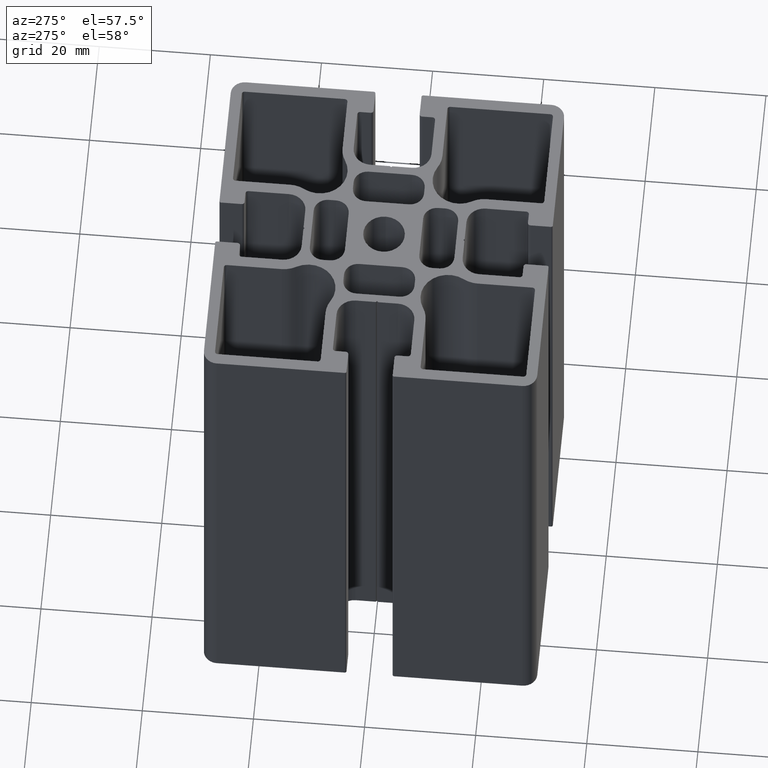
[diagram: clean part render]
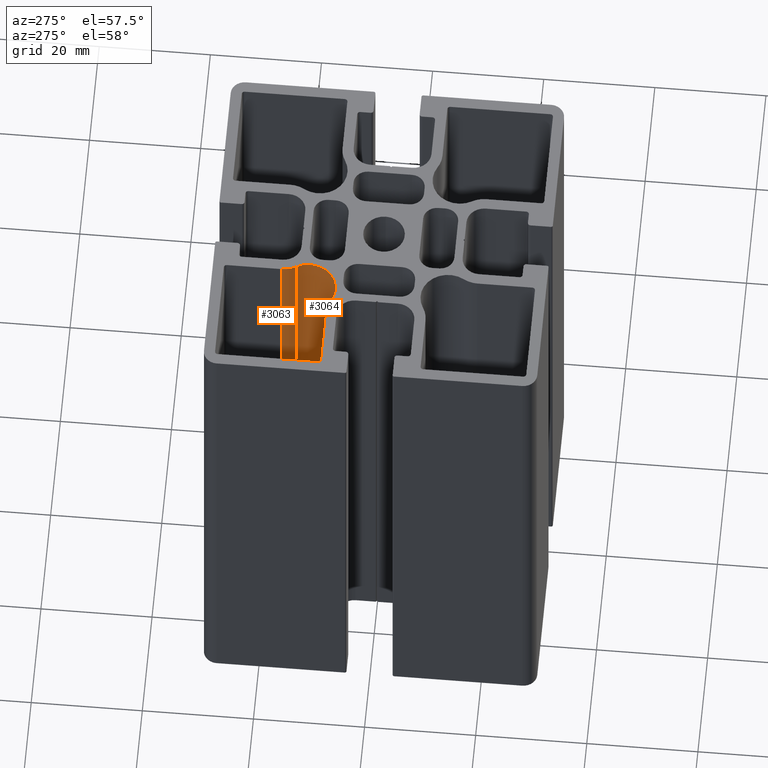
[diagram: same view with one multi-face feature highlighted, each face labeled with its STEP entity id]
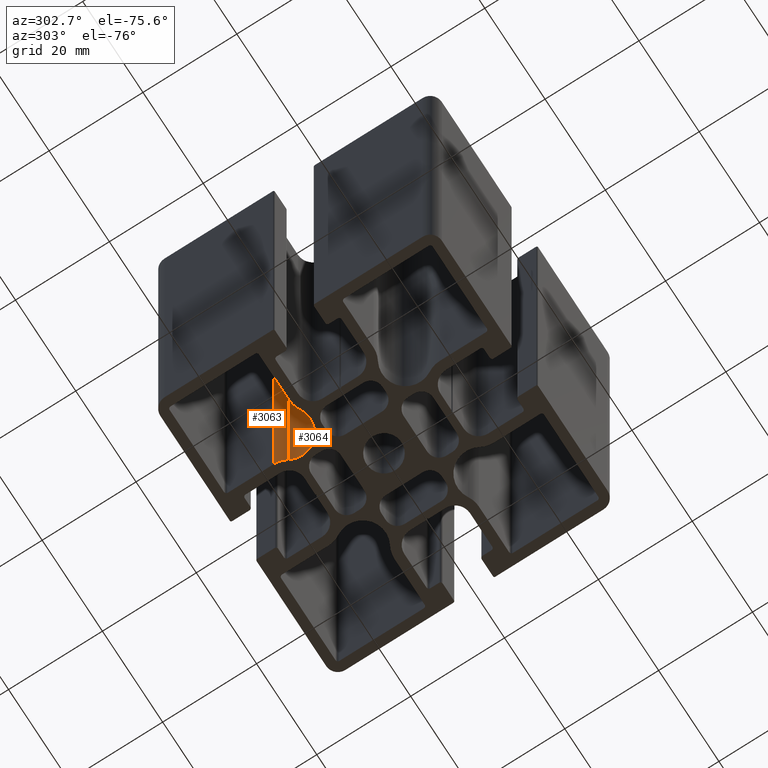
[diagram: same view with one multi-face feature highlighted, each face labeled with its STEP entity id]
A machine part, auxiliary view. The highlighted faces form ONE feature: a constant-radius fillet chain: 2 tangent blend faces with common blend radius 4.9561 mm. The faces share edges in the B-rep.
A second angle (auxiliary view) of the same feature is appended — it is thin or edge-on in the first view.
Their STEP definitions:
[1] entity #3064 (Cylinder):
#62=CIRCLE('',#3254,4.91224864432931);
#63=CIRCLE('',#3255,4.91224864432931);
#202=CYLINDRICAL_SURFACE('',#3253,4.91224864432931);
#289=FACE_OUTER_BOUND('',#448,.T.);
#448=EDGE_LOOP('',(#2114,#2115,#2116,#2117));
#646=LINE('',#4604,#962);
#647=LINE('',#4610,#963);
#962=VECTOR('',#3662,100.);
#963=VECTOR('',#3669,100.);
#1282=VERTEX_POINT('',#4601);
#1283=VERTEX_POINT('',#4603);
#1284=VERTEX_POINT('',#4607);
#1285=VERTEX_POINT('',#4609);
#1619=EDGE_CURVE('',#1282,#1283,#646,.T.);
#1621=EDGE_CURVE('',#1284,#1282,#62,.T.);
#1622=EDGE_CURVE('',#1284,#1285,#647,.T.);
#1623=EDGE_CURVE('',#1283,#1285,#63,.T.);
#2114=ORIENTED_EDGE('',*,*,#1621,.F.);
#2115=ORIENTED_EDGE('',*,*,#1622,.T.);
#2116=ORIENTED_EDGE('',*,*,#1623,.F.);
#2117=ORIENTED_EDGE('',*,*,#1619,.F.);
#3064=ADVANCED_FACE('',(#289),#202,.F.);
#3253=AXIS2_PLACEMENT_3D('',#4606,#3665,#3666);
#3254=AXIS2_PLACEMENT_3D('',#4608,#3667,#3668);
#3255=AXIS2_PLACEMENT_3D('',#4611,#3670,#3671);
#3662=DIRECTION('',(0.,0.,1.));
#3665=DIRECTION('center_axis',(0.,0.,1.));
#3666=DIRECTION('ref_axis',(-0.501248019484567,-0.865303659395243,0.));
#3667=DIRECTION('center_axis',(0.,0.,1.));
#3668=DIRECTION('ref_axis',(-0.501248019484567,-0.865303659395243,0.));
#3669=DIRECTION('',(0.,0.,1.));
#3670=DIRECTION('center_axis',(0.,0.,-1.));
#3671=DIRECTION('ref_axis',(-0.501248019484567,-0.865303659395243,0.));
#4601=CARTESIAN_POINT('',(-8.29859784172927,15.0861163327788,0.));
#4603=CARTESIAN_POINT('',(-8.29859784172927,15.0861163327788,100.));
#4604=CARTESIAN_POINT('',(-8.29859784172927,15.0861163327788,0.));
#4606=CARTESIAN_POINT('Origin',(-12.5217541258398,12.5771050247737,0.));
#4607=CARTESIAN_POINT('',(-14.9840090300258,8.32651829697579,0.));
#4608=CARTESIAN_POINT('Origin',(-12.5217541258398,12.5771050247737,0.));
#4609=CARTESIAN_POINT('',(-14.9840090300258,8.32651829697579,100.));
#4610=CARTESIAN_POINT('',(-14.9840090300258,8.32651829697579,0.));
#4611=CARTESIAN_POINT('Origin',(-12.5217541258398,12.5771050247737,100.));
[2] entity #3063 (Cylinder):
#60=CIRCLE('',#3251,4.99999999999999);
#61=CIRCLE('',#3252,4.99999999999999);
#201=CYLINDRICAL_SURFACE('',#3250,4.99999999999999);
#288=FACE_OUTER_BOUND('',#447,.T.);
#447=EDGE_LOOP('',(#2110,#2111,#2112,#2113));
#644=LINE('',#4598,#960);
#646=LINE('',#4604,#962);
#960=VECTOR('',#3656,100.);
#962=VECTOR('',#3662,100.);
#1280=VERTEX_POINT('',#4595);
#1281=VERTEX_POINT('',#4597);
#1282=VERTEX_POINT('',#4601);
#1283=VERTEX_POINT('',#4603);
#1616=EDGE_CURVE('',#1280,#1281,#644,.T.);
#1618=EDGE_CURVE('',#1282,#1280,#60,.T.);
#1619=EDGE_CURVE('',#1282,#1283,#646,.T.);
#1620=EDGE_CURVE('',#1281,#1283,#61,.T.);
#2110=ORIENTED_EDGE('',*,*,#1618,.F.);
#2111=ORIENTED_EDGE('',*,*,#1619,.T.);
#2112=ORIENTED_EDGE('',*,*,#1620,.F.);
#2113=ORIENTED_EDGE('',*,*,#1616,.F.);
#3063=ADVANCED_FACE('',(#288),#201,.T.);
#3250=AXIS2_PLACEMENT_3D('',#4600,#3658,#3659);
#3251=AXIS2_PLACEMENT_3D('',#4602,#3660,#3661);
#3252=AXIS2_PLACEMENT_3D('',#4605,#3663,#3664);
#3656=DIRECTION('',(0.,0.,1.));
#3658=DIRECTION('center_axis',(0.,0.,1.));
#3659=DIRECTION('ref_axis',(1.,0.,0.));
#3660=DIRECTION('center_axis',(0.,0.,-1.));
#3661=DIRECTION('ref_axis',(1.,0.,0.));
#3662=DIRECTION('',(0.,0.,1.));
#3663=DIRECTION('center_axis',(0.,0.,1.));
#3664=DIRECTION('ref_axis',(1.,0.,0.));
#4595=CARTESIAN_POINT('',(-9.00000000000023,17.6399480803852,0.));
#4597=CARTESIAN_POINT('',(-9.00000000000023,17.6399480803852,100.));
#4598=CARTESIAN_POINT('',(-9.00000000000023,17.6399480803852,0.));
#4600=CARTESIAN_POINT('Origin',(-4.00000000000025,17.6399480803852,0.));
#4601=CARTESIAN_POINT('',(-8.29859784172927,15.0861163327788,0.));
#4602=CARTESIAN_POINT('Origin',(-4.00000000000025,17.6399480803852,0.));
#4603=CARTESIAN_POINT('',(-8.29859784172927,15.0861163327788,100.));
#4604=CARTESIAN_POINT('',(-8.29859784172927,15.0861163327788,0.));
#4605=CARTESIAN_POINT('Origin',(-4.00000000000025,17.6399480803852,100.));